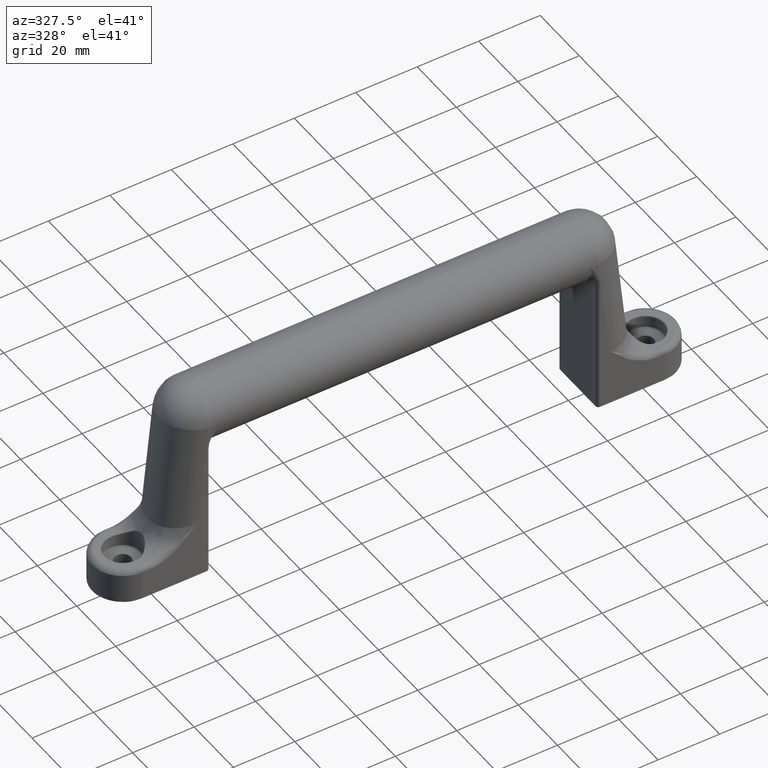
[diagram: clean part render]
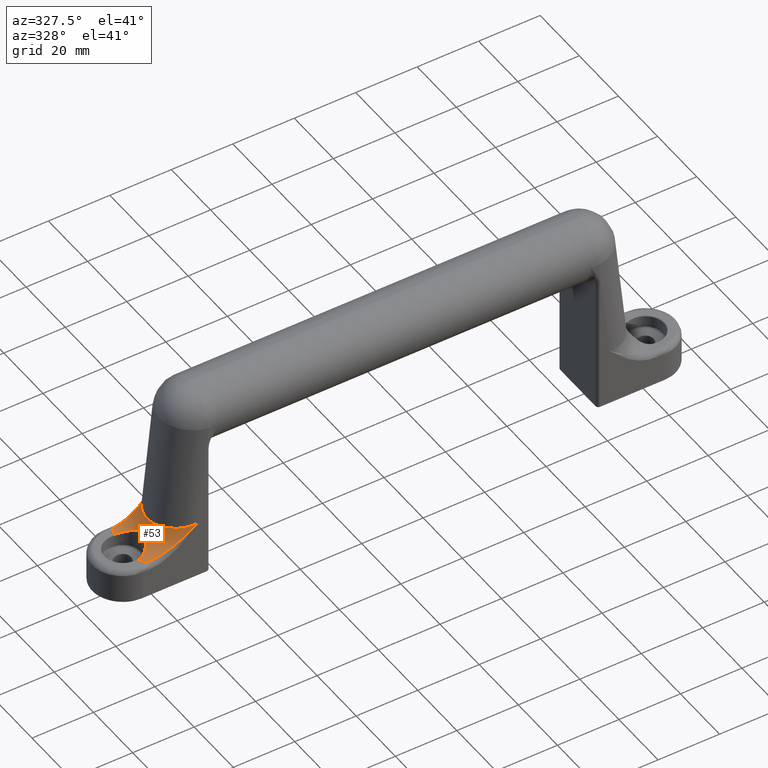
[diagram: same view with one face highlighted and labeled with its STEP entity id]
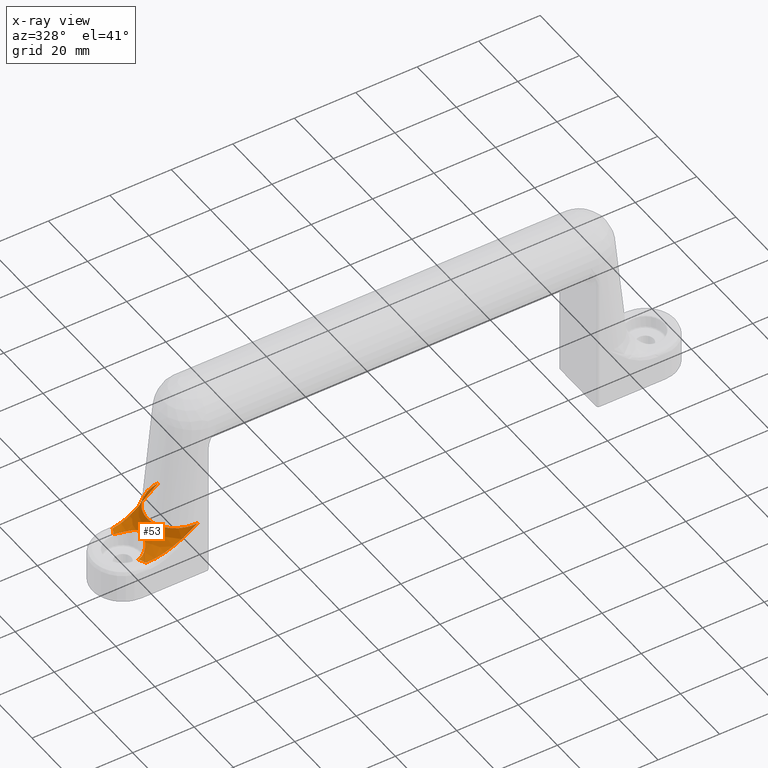
[diagram: x-ray of the same camera — body ghosted, the highlighted face saturated]
A machine part, auxiliary view. The second image highlights one B-rep face of the part: STEP entity #53.
The next image is the same camera in x-ray: the body ghosted, the highlighted face saturated — about 0% of this face is hidden behind the body in this view.
In plain terms, the highlighted face is a freeform B-spline surface patch.
Its self-contained STEP definition (entity closure, byte-faithful):
#53=ADVANCED_FACE('',(#252),#251,.F.);
#251=( BOUNDED_SURFACE() B_SPLINE_SURFACE( 3,2,((#1412,#1413,#1414),(#1415,#1416,#1417),(#1418,#1419,#1420),(#1421,#1422,#1423),(#1424,#1425,#1426),(#1427,#1428,#1429),(#1430,#1431,#1432),(#1433,#1434,#1435),(#1436,#1437,#1438),(#1439,#1440,#1441),(#1442,#1443,#1444),(#1445,#1446,#1447),(#1448,#1449,#1450),(#1451,#1452,#1453),(#1454,#1455,#1456),(#1457,#1458,#1459),(#1460,#1461,#1462),(#1463,#1464,#1465),(#1466,#1467,#1468),(#1469,#1470,#1471),(#1472,#1473,#1474),(#1475,#1476,#1477),(#1478,#1479,#1480),(#1481,#1482,#1483),(#1484,#1485,#1486),(#1487,#1488,#1489),(#1490,#1491,#1492),(#1493,#1494,#1495),(#1496,#1497,#1498),(#1499,#1500,#1501),(#1502,#1503,#1504),(#1505,#1506,#1507),(#1508,#1509,#1510),(#1511,#1512,#1513)), .UNSPECIFIED.,.F.,.F.,.F.) B_SPLINE_SURFACE_WITH_KNOTS((4,2,2,2,2,2,2,2,2,2,2,2,2,2,2,2,4),(3,3),(1.55194677087E+00,1.75065250621E+00,1.94935824155E+00,2.14806397689E+00,2.34676971223E+00,2.54547544757E+00,2.74418118291E+00,2.94288691825E+00,3.14159265359E+00,3.34029838893E+00,3.53900412427E+00,3.73770985961E+00,3.93641559495E+00,4.13512133029E+00,4.33382706563E+00,4.53253280097E+00,4.73123853631E+00),(0.00000000000E+00,1.00000000000E+00), .UNSPECIFIED. ) GEOMETRIC_REPRESENTATION_ITEM() RATIONAL_B_SPLINE_SURFACE(((1.00000000000E+00,7.06409867415E-01,1.00000000000E+00),(1.00000000000E+00,7.08859745657E-01,1.00000000000E+00),(1.00000000000E+00,7.11301094414E-01,1.00000000000E+00),(1.00000000000E+00,7.16073345273E-01,1.00000000000E+00),(1.00000000000E+00,7.18404066029E-01,1.00000000000E+00),(1.00000000000E+00,7.22867670299E-01,1.00000000000E+00),(1.00000000000E+00,7.25000475143E-01,1.00000000000E+00),(1.00000000000E+00,7.28990574144E-01,1.00000000000E+00),(1.00000000000E+00,7.30847807672E-01,1.00000000000E+00),(1.00000000000E+00,7.34220723999E-01,1.00000000000E+00),(1.00000000000E+00,7.35736361926E-01,1.00000000000E+00),(1.00000000000E+00,7.38373253955E-01,1.00000000000E+00),(1.00000000000E+00,7.39494476676E-01,1.00000000000E+00),(1.00000000000E+00,7.41304047415E-01,1.00000000000E+00),(1.00000000000E+00,7.41992375638E-01,1.00000000000E+00),(1.00000000000E+00,7.42912769445E-01,1.00000000000E+00),(1.00000000000E+00,7.43144825477E-01,1.00000000000E+00),(1.00000000000E+00,7.43144825477E-01,1.00000000000E+00),(1.00000000000E+00,7.42912769445E-01,1.00000000000E+00),(1.00000000000E+00,7.41992375638E-01,1.00000000000E+00),(1.00000000000E+00,7.41304047415E-01,1.00000000000E+00),(1.00000000000E+00,7.39494476676E-01,1.00000000000E+00),(1.00000000000E+00,7.38373253955E-01,1.00000000000E+00),(1.00000000000E+00,7.35736361926E-01,1.00000000000E+00),(1.00000000000E+00,7.34220723999E-01,1.00000000000E+00),(1.00000000000E+00,7.30847807673E-01,1.00000000000E+00),(1.00000000000E+00,7.28990574144E-01,1.00000000000E+00),(1.00000000000E+00,7.25000475143E-01,1.00000000000E+00),(1.00000000000E+00,7.22867670299E-01,1.00000000000E+00),(1.00000000000E+00,7.18404066029E-01,1.00000000000E+00),(1.00000000000E+00,7.16073345273E-01,1.00000000000E+00),(1.00000000000E+00,7.11301094414E-01,1.00000000000E+00),(1.00000000000E+00,7.08859745657E-01,1.00000000000E+00),(1.00000000000E+00,7.06409867415E-01,1.00000000000E+00))) REPRESENTATION_ITEM('') SURFACE() );
#252=FACE_OUTER_BOUND('',#1514,.T.);
#1412=CARTESIAN_POINT('',(-6.67723087112E+01,9.99822352381E+00,-3.29842384125E+01));
#1413=CARTESIAN_POINT('',(-6.67726047483E+01,9.98243362708E+00,-4.10000000000E+01));
#1414=CARTESIAN_POINT('',(-6.66223472233E+01,1.79968023429E+01,-4.10000000000E+01));
#1415=CARTESIAN_POINT('',(-6.74440196619E+01,1.00107079816E+01,-3.30396169745E+01));
#1416=CARTESIAN_POINT('',(-6.74398800418E+01,1.00502467512E+01,-4.10000000000E+01));
#1417=CARTESIAN_POINT('',(-6.78209500612E+01,1.80192743681E+01,-4.10000000000E+01));
#1418=CARTESIAN_POINT('',(-6.81169595259E+01,9.95718126214E+00,-3.30950968531E+01));
#1419=CARTESIAN_POINT('',(-6.81219445436E+01,1.00519627420E+01,-4.10000000000E+01));
#1420=CARTESIAN_POINT('',(-6.90217456449E+01,1.79229262718E+01,-4.10000000000E+01));
#1421=CARTESIAN_POINT('',(-6.94389304919E+01,9.72020735287E+00,-3.32040854754E+01));
#1422=CARTESIAN_POINT('',(-6.94816494137E+01,9.91483757496E+00,-4.10000000000E+01));
#1423=CARTESIAN_POINT('',(-7.13806740851E+01,1.74963732352E+01,-4.10000000000E+01));
#1424=CARTESIAN_POINT('',(-7.00879193731E+01,9.53676616091E+00,-3.32575907383E+01));
#1425=CARTESIAN_POINT('',(-7.01594915701E+01,9.77685811437E+00,-4.10000000000E+01));
#1426=CARTESIAN_POINT('',(-7.25387315378E+01,1.71661790896E+01,-4.10000000000E+01));
#1427=CARTESIAN_POINT('',(-7.13364301376E+01,9.04717564640E+00,-3.33605230052E+01));
#1428=CARTESIAN_POINT('',(-7.14795131953E+01,9.36135695476E+00,-4.10000000000E+01));
#1429=CARTESIAN_POINT('',(-7.47665774029E+01,1.62849161635E+01,-4.10000000000E+01));
#1430=CARTESIAN_POINT('',(-7.19359196434E+01,8.74103902028E+00,-3.34099473398E+01));
#1431=CARTESIAN_POINT('',(-7.21221883101E+01,9.08455199745E+00,-4.10000000000E+01));
#1432=CARTESIAN_POINT('',(-7.58363080410E+01,1.57338702365E+01,-4.10000000000E+01));
#1433=CARTESIAN_POINT('',(-7.30618360330E+01,8.01809935571E+00,-3.35027724315E+01));
#1434=CARTESIAN_POINT('',(-7.33408650682E+01,8.40001014552E+00,-4.10000000000E+01));
#1435=CARTESIAN_POINT('',(-7.78453961839E+01,1.44325788403E+01,-4.10000000000E+01));
#1436=CARTESIAN_POINT('',(-7.35882337187E+01,7.60131506505E+00,-3.35461707814E+01));
#1437=CARTESIAN_POINT('',(-7.39175994287E+01,7.99272981861E+00,-4.10000000000E+01));
#1438=CARTESIAN_POINT('',(-7.87847015874E+01,1.36823671171E+01,-4.10000000000E+01));
#1439=CARTESIAN_POINT('',(-7.45472461669E+01,6.67347698048E+00,-3.36252356385E+01));
#1440=CARTESIAN_POINT('',(-7.49757515752E+01,7.06324525239E+00,-4.10000000000E+01));
#1441=CARTESIAN_POINT('',(-8.04959659016E+01,1.20122585649E+01,-4.10000000000E+01));
#1442=CARTESIAN_POINT('',(-7.49798360595E+01,6.16244724794E+00,-3.36609000954E+01));
#1443=CARTESIAN_POINT('',(-7.54580102984E+01,6.54116522718E+00,-4.10000000000E+01));
#1444=CARTESIAN_POINT('',(-8.12678804346E+01,1.10924050463E+01,-4.10000000000E+01));
#1445=CARTESIAN_POINT('',(-7.57342033747E+01,5.06622509194E+00,-3.37230931817E+01));
#1446=CARTESIAN_POINT('',(-7.63028483329E+01,5.40469939316E+00,-4.10000000000E+01));
#1447=CARTESIAN_POINT('',(-8.26139754397E+01,9.11920516550E+00,-4.10000000000E+01));
#1448=CARTESIAN_POINT('',(-7.60559612344E+01,4.48106109651E+00,-3.37496201984E+01));
#1449=CARTESIAN_POINT('',(-7.66662303680E+01,4.79009166623E+00,-4.10000000000E+01));
#1450=CARTESIAN_POINT('',(-8.31881210039E+01,8.06590997371E+00,-4.10000000000E+01));
#1451=CARTESIAN_POINT('',(-7.65759958757E+01,3.25959584223E+00,-3.37924939532E+01));
#1452=CARTESIAN_POINT('',(-7.72548327691E+01,3.49652633541E+00,-4.10000000000E+01));
#1453=CARTESIAN_POINT('',(-8.41160721745E+01,5.86727251602E+00,-4.10000000000E+01));
#1454=CARTESIAN_POINT('',(-7.67742591714E+01,2.62332625932E+00,-3.38088395796E+01));
#1455=CARTESIAN_POINT('',(-7.74806791649E+01,2.81704674560E+00,-4.10000000000E+01));
#1456=CARTESIAN_POINT('',(-8.44698537165E+01,4.72198726677E+00,-4.10000000000E+01));
#1457=CARTESIAN_POINT('',(-7.70394955786E+01,1.32468772498E+00,-3.38307067396E+01));
#1458=CARTESIAN_POINT('',(-7.77827940112E+01,1.42539528551E+00,-4.10000000000E+01));
#1459=CARTESIAN_POINT('',(-8.49431422535E+01,2.38443790497E+00,-4.10000000000E+01));
#1460=CARTESIAN_POINT('',(-7.71064618119E+01,6.62352450791E-01,-3.38362277061E+01));
#1461=CARTESIAN_POINT('',(-7.78594046205E+01,7.12498507523E-01,-4.10000000000E+01));
#1462=CARTESIAN_POINT('',(-8.50626369749E+01,1.19223441142E+00,-4.10000000000E+01));
#1463=CARTESIAN_POINT('',(-7.71064618119E+01,-6.62352450791E-01,-3.38362277061E+01));
#1464=CARTESIAN_POINT('',(-7.78594046205E+01,-7.12498507523E-01,-4.10000000000E+01));
#1465=CARTESIAN_POINT('',(-8.50626369749E+01,-1.19223441142E+00,-4.10000000000E+01));
#1466=CARTESIAN_POINT('',(-7.70394955786E+01,-1.32468772498E+00,-3.38307067396E+01));
#1467=CARTESIAN_POINT('',(-7.77827940112E+01,-1.42539528551E+00,-4.10000000000E+01));
#1468=CARTESIAN_POINT('',(-8.49431422535E+01,-2.38443790497E+00,-4.10000000000E+01));
#1469=CARTESIAN_POINT('',(-7.67742591714E+01,-2.62332625932E+00,-3.38088395796E+01));
#1470=CARTESIAN_POINT('',(-7.74806791649E+01,-2.81704674559E+00,-4.10000000000E+01));
#1471=CARTESIAN_POINT('',(-8.44698537165E+01,-4.72198726677E+00,-4.10000000000E+01));
#1472=CARTESIAN_POINT('',(-7.65759958757E+01,-3.25959584223E+00,-3.37924939532E+01));
#1473=CARTESIAN_POINT('',(-7.72548327691E+01,-3.49652633541E+00,-4.10000000000E+01));
#1474=CARTESIAN_POINT('',(-8.41160721745E+01,-5.86727251602E+00,-4.10000000000E+01));
#1475=CARTESIAN_POINT('',(-7.60559612344E+01,-4.48106109650E+00,-3.37496201984E+01));
#1476=CARTESIAN_POINT('',(-7.66662303681E+01,-4.79009166623E+00,-4.10000000000E+01));
#1477=CARTESIAN_POINT('',(-8.31881210039E+01,-8.06590997371E+00,-4.10000000000E+01));
#1478=CARTESIAN_POINT('',(-7.57342033747E+01,-5.06622509195E+00,-3.37230931817E+01));
#1479=CARTESIAN_POINT('',(-7.63028483329E+01,-5.40469939316E+00,-4.10000000000E+01));
#1480=CARTESIAN_POINT('',(-8.26139754397E+01,-9.11920516550E+00,-4.10000000000E+01));
#1481=CARTESIAN_POINT('',(-7.49798360595E+01,-6.16244724794E+00,-3.36609000954E+01));
#1482=CARTESIAN_POINT('',(-7.54580102984E+01,-6.54116522718E+00,-4.10000000000E+01));
#1483=CARTESIAN_POINT('',(-8.12678804346E+01,-1.10924050463E+01,-4.10000000000E+01));
#1484=CARTESIAN_POINT('',(-7.45472461669E+01,-6.67347698048E+00,-3.36252356385E+01));
#1485=CARTESIAN_POINT('',(-7.49757515751E+01,-7.06324525238E+00,-4.10000000000E+01));
#1486=CARTESIAN_POINT('',(-8.04959659016E+01,-1.20122585649E+01,-4.10000000000E+01));
#1487=CARTESIAN_POINT('',(-7.35882337187E+01,-7.60131506505E+00,-3.35461707814E+01));
#1488=CARTESIAN_POINT('',(-7.39175994288E+01,-7.99272981861E+00,-4.10000000000E+01));
#1489=CARTESIAN_POINT('',(-7.87847015874E+01,-1.36823671171E+01,-4.10000000000E+01));
#1490=CARTESIAN_POINT('',(-7.30618360330E+01,-8.01809935571E+00,-3.35027724315E+01));
#1491=CARTESIAN_POINT('',(-7.33408650682E+01,-8.40001014552E+00,-4.10000000000E+01));
#1492=CARTESIAN_POINT('',(-7.78453961839E+01,-1.44325788403E+01,-4.10000000000E+01));
#1493=CARTESIAN_POINT('',(-7.19359196434E+01,-8.74103902028E+00,-3.34099473398E+01));
#1494=CARTESIAN_POINT('',(-7.21221883101E+01,-9.08455199745E+00,-4.10000000000E+01));
#1495=CARTESIAN_POINT('',(-7.58363080410E+01,-1.57338702365E+01,-4.10000000000E+01));
#1496=CARTESIAN_POINT('',(-7.13364301375E+01,-9.04717564640E+00,-3.33605230052E+01));
#1497=CARTESIAN_POINT('',(-7.14795131953E+01,-9.36135695476E+00,-4.10000000000E+01));
#1498=CARTESIAN_POINT('',(-7.47665774029E+01,-1.62849161635E+01,-4.10000000000E+01));
#1499=CARTESIAN_POINT('',(-7.00879193731E+01,-9.53676616090E+00,-3.32575907384E+01));
#1500=CARTESIAN_POINT('',(-7.01594915702E+01,-9.77685811437E+00,-4.10000000000E+01));
#1501=CARTESIAN_POINT('',(-7.25387315378E+01,-1.71661790896E+01,-4.10000000000E+01));
#1502=CARTESIAN_POINT('',(-6.94389304919E+01,-9.72020735287E+00,-3.32040854755E+01));
#1503=CARTESIAN_POINT('',(-6.94816494137E+01,-9.91483757497E+00,-4.10000000000E+01));
#1504=CARTESIAN_POINT('',(-7.13806740851E+01,-1.74963732352E+01,-4.10000000000E+01));
#1505=CARTESIAN_POINT('',(-6.81169595260E+01,-9.95718126213E+00,-3.30950968531E+01));
#1506=CARTESIAN_POINT('',(-6.81219445436E+01,-1.00519627420E+01,-4.10000000000E+01));
#1507=CARTESIAN_POINT('',(-6.90217456449E+01,-1.79229262718E+01,-4.10000000000E+01));
#1508=CARTESIAN_POINT('',(-6.74440196619E+01,-1.00107079816E+01,-3.30396169745E+01));
#1509=CARTESIAN_POINT('',(-6.74398800418E+01,-1.00502467512E+01,-4.10000000000E+01));
#1510=CARTESIAN_POINT('',(-6.78209500612E+01,-1.80192743681E+01,-4.10000000000E+01));
#1511=CARTESIAN_POINT('',(-6.67723087112E+01,-9.99822352381E+00,-3.29842384125E+01));
#1512=CARTESIAN_POINT('',(-6.67726047483E+01,-9.98243362708E+00,-4.10000000000E+01));
#1513=CARTESIAN_POINT('',(-6.66223472233E+01,-1.79968023429E+01,-4.10000000000E+01));
#1514=EDGE_LOOP('',(#2677,#2678,#2679,#2680,#2681,#2682));
#2677=ORIENTED_EDGE('',*,*,#3027,.F.);
#2678=ORIENTED_EDGE('',*,*,#3023,.T.);
#2679=ORIENTED_EDGE('',*,*,#3028,.F.);
#2680=ORIENTED_EDGE('',*,*,#3029,.T.);
#2681=ORIENTED_EDGE('',*,*,#3030,.F.);
#2682=ORIENTED_EDGE('',*,*,#3031,.T.);
#3023=EDGE_CURVE('',#3428,#3421,#3429,.T.);
#3027=EDGE_CURVE('',#3428,#3455,#3456,.T.);
#3028=EDGE_CURVE('',#3462,#3421,#3463,.T.);
#3029=EDGE_CURVE('',#3462,#3469,#3470,.T.);
#3030=EDGE_CURVE('',#3476,#3469,#3477,.T.);
#3031=EDGE_CURVE('',#3476,#3455,#3483,.T.);
#3421=VERTEX_POINT('',#4619);
#3428=VERTEX_POINT('',#4624);
#3429=(BOUNDED_CURVE() B_SPLINE_CURVE(3,(#4625,#4626,#4627,#4628,#4629,#4630,#4631,#4632,#4633,#4634,#4635,#4636,#4637,#4638,#4639,#4640,#4641,#4642,#4643,#4644,#4645,#4646,#4647,#4648,#4649,#4650,#4651,#4652,#4653,#4654,#4655,#4656,#4657,#4658,#4659,#4660,#4661,#4662,#4663,#4664),.UNSPECIFIED.,.F.,.F.) B_SPLINE_CURVE_WITH_KNOTS((4,2,2,2,2,2,2,2,2,2,2,2,2,2,2,2,2,2,2,4),(1.45396321842E-17,1.15173173863E-03,2.30346347727E-03,3.45519521590E-03,4.60692695454E-03,5.75865869317E-03,6.91039043180E-03,7.48625630112E-03,8.06212217044E-03,8.63798803976E-03,9.21385390907E-03,9.78971977839E-03,1.03655856477E-02,1.15173173863E-02,1.26690491250E-02,1.38207808636E-02,1.49725126022E-02,1.61242443409E-02,1.72759760795E-02,1.84277078181E-02),.UNSPECIFIED.) CURVE() GEOMETRIC_REPRESENTATION_ITEM() RATIONAL_B_SPLINE_CURVE((1.00000000000E+00,1.00000000000E+00,1.00000000000E+00,1.00000000000E+00,1.00000000000E+00,1.00000000000E+00,1.00000000000E+00,1.00000000000E+00,1.00000000000E+00,1.00000000000E+00,1.00000000000E+00,1.00000000000E+00,1.00000000000E+00,1.00000000000E+00,1.00000000000E+00,1.00000000000E+00,1.00000000000E+00,1.00000000000E+00,1.00000000000E+00,1.00000000000E+00,1.00000000000E+00,1.00000000000E+00,1.00000000000E+00,1.00000000000E+00,1.00000000000E+00,1.00000000000E+00,1.00000000000E+00,1.00000000000E+00,1.00000000000E+00,1.00000000000E+00,1.00000000000E+00,1.00000000000E+00,1.00000000000E+00,1.00000000000E+00,1.00000000000E+00,1.00000000000E+00,1.00000000000E+00,1.00000000000E+00,1.00000000000E+00,1.00000000000E+00)) REPRESENTATION_ITEM('') );
#3455=VERTEX_POINT('',#4713);
#3456=(BOUNDED_CURVE() B_SPLINE_CURVE(2,(#4714,#4715,#4716),.UNSPECIFIED.,.F.,.F.) B_SPLINE_CURVE_WITH_KNOTS((3,3),(-2.78923576282E+00,-2.64978255902E+00),.UNSPECIFIED.) CURVE() GEOMETRIC_REPRESENTATION_ITEM() RATIONAL_B_SPLINE_CURVE((1.00000000000E+00,9.97570085213E-01,1.00000000000E+00)) REPRESENTATION_ITEM('') );
#3462=VERTEX_POINT('',#4717);
#3463=(BOUNDED_CURVE() B_SPLINE_CURVE(2,(#4718,#4719,#4720),.UNSPECIFIED.,.F.,.F.) B_SPLINE_CURVE_WITH_KNOTS((3,3),(2.64978255902E+00,2.78923576282E+00),.UNSPECIFIED.) CURVE() GEOMETRIC_REPRESENTATION_ITEM() RATIONAL_B_SPLINE_CURVE((1.00000000000E+00,9.97570085213E-01,1.00000000000E+00)) REPRESENTATION_ITEM('') );
#3469=VERTEX_POINT('',#4721);
#3470=(BOUNDED_CURVE() B_SPLINE_CURVE(3,(#4722,#4723,#4724,#4725,#4726,#4727,#4728,#4729,#4730,#4731,#4732,#4733),.UNSPECIFIED.,.F.,.F.) B_SPLINE_CURVE_WITH_KNOTS((4,2,2,2,2,4),(0.00000000000E+00,2.28150081984E-03,4.56300163968E-03,9.12600327935E-03,1.36890049190E-02,1.82520065587E-02),.UNSPECIFIED.) CURVE() GEOMETRIC_REPRESENTATION_ITEM() RATIONAL_B_SPLINE_CURVE((1.00000000000E+00,1.00000000000E+00,1.00000000000E+00,1.00000000000E+00,1.00000000000E+00,1.00000000000E+00,1.00000000000E+00,1.00000000000E+00,1.00000000000E+00,1.00000000000E+00,1.00000000000E+00,1.00000000000E+00)) REPRESENTATION_ITEM('') );
#3476=VERTEX_POINT('',#4734);
#3477=(BOUNDED_CURVE() B_SPLINE_CURVE(2,(#4735,#4736,#4737,#4738,#4739),.UNSPECIFIED.,.F.,.F.) B_SPLINE_CURVE_WITH_KNOTS((3,2,3),(-4.71238898038E+00,-3.14159265359E+00,-1.57079632679E+00),.UNSPECIFIED.) CURVE() GEOMETRIC_REPRESENTATION_ITEM() RATIONAL_B_SPLINE_CURVE((1.00000000000E+00,7.07106781187E-01,1.00000000000E+00,7.07106781187E-01,1.00000000000E+00)) REPRESENTATION_ITEM('') );
#3483=(BOUNDED_CURVE() B_SPLINE_CURVE(3,(#4740,#4741,#4742,#4743,#4744,#4745,#4746,#4747,#4748,#4749,#4750,#4751),.UNSPECIFIED.,.F.,.F.) B_SPLINE_CURVE_WITH_KNOTS((4,2,2,2,2,4),(-1.82520065587E-02,-1.36890049190E-02,-9.12600327935E-03,-4.56300163968E-03,-2.28150081984E-03,-0.00000000000E+00),.UNSPECIFIED.) CURVE() GEOMETRIC_REPRESENTATION_ITEM() RATIONAL_B_SPLINE_CURVE((1.00000000000E+00,1.00000000000E+00,1.00000000000E+00,1.00000000000E+00,1.00000000000E+00,1.00000000000E+00,1.00000000000E+00,1.00000000000E+00,1.00000000000E+00,1.00000000000E+00,1.00000000000E+00,1.00000000000E+00)) REPRESENTATION_ITEM('') );
#4619=CARTESIAN_POINT('',(-8.39506602230E+01,-6.21199533408E+00,-4.10000000000E+01));
#4624=CARTESIAN_POINT('',(-8.39506602230E+01,6.21199533408E+00,-4.10000000000E+01));
#4625=CARTESIAN_POINT('',(-8.39506602230E+01,6.21199533408E+00,-4.10000000000E+01));
#4626=CARTESIAN_POINT('',(-8.35653887823E+01,6.14961975110E+00,-4.10000000000E+01));
#4627=CARTESIAN_POINT('',(-8.31947526335E+01,6.05076832101E+00,-4.09726663375E+01));
#4628=CARTESIAN_POINT('',(-8.24813754013E+01,5.78474172413E+00,-4.08625402913E+01));
#4629=CARTESIAN_POINT('',(-8.21359315450E+01,5.61496084242E+00,-4.07780588572E+01));
#4630=CARTESIAN_POINT('',(-8.15057669343E+01,5.22713421342E+00,-4.05631691347E+01));
#4631=CARTESIAN_POINT('',(-8.12162838400E+01,5.00780581208E+00,-4.04323521467E+01));
#4632=CARTESIAN_POINT('',(-8.06852389943E+01,4.52403418946E+00,-4.01322591942E+01));
#4633=CARTESIAN_POINT('',(-8.04513880700E+01,4.26692491045E+00,-3.99675544616E+01));
#4634=CARTESIAN_POINT('',(-8.00345698935E+01,3.72406793508E+00,-3.96212470396E+01));
#4635=CARTESIAN_POINT('',(-7.98516921538E+01,3.43837832270E+00,-3.94394420253E+01));
#4636=CARTESIAN_POINT('',(-7.95310405698E+01,2.83298980235E+00,-3.90745766661E+01));
#4637=CARTESIAN_POINT('',(-7.93961754616E+01,2.51887852498E+00,-3.88947248694E+01));
#4638=CARTESIAN_POINT('',(-7.92291781033E+01,2.02396552890E+00,-3.86490340999E+01));
#4639=CARTESIAN_POINT('',(-7.91794100416E+01,1.85488247556E+00,-3.85711869778E+01));
#4640=CARTESIAN_POINT('',(-7.90919784271E+01,1.50593620087E+00,-3.84285100014E+01));
#4641=CARTESIAN_POINT('',(-7.90542066208E+01,1.32507898650E+00,-3.83634715056E+01));
#4642=CARTESIAN_POINT('',(-7.89932938485E+01,9.58179629818E-01,-3.82555253092E+01));
#4643=CARTESIAN_POINT('',(-7.89699080554E+01,7.71442277398E-01,-3.82122743242E+01));
#4644=CARTESIAN_POINT('',(-7.89381931999E+01,3.89988485735E-01,-3.81529644941E+01));
#4645=CARTESIAN_POINT('',(-7.89299954351E+01,1.93916711266E-01,-3.81372033774E+01));
#4646=CARTESIAN_POINT('',(-7.89299543070E+01,-1.92421546384E-01,-3.81371249825E+01));
#4647=CARTESIAN_POINT('',(-7.89378808476E+01,-3.84189896435E-01,-3.81523686138E+01));
#4648=CARTESIAN_POINT('',(-7.89692175372E+01,-7.65114755467E-01,-3.82109943702E+01));
#4649=CARTESIAN_POINT('',(-7.89928839950E+01,-9.55172522046E-01,-3.82547772573E+01));
#4650=CARTESIAN_POINT('',(-7.90838960318E+01,-1.50497178940E+00,-3.84161283154E+01));
#4651=CARTESIAN_POINT('',(-7.91710203697E+01,-1.85074170010E+00,-3.85632872789E+01));
#4652=CARTESIAN_POINT('',(-7.93953928342E+01,-2.51741427428E+00,-3.88937544685E+01));
#4653=CARTESIAN_POINT('',(-7.95302226436E+01,-2.83067973257E+00,-3.90733138999E+01));
#4654=CARTESIAN_POINT('',(-7.98464015887E+01,-3.42914095237E+00,-3.94337476658E+01));
#4655=CARTESIAN_POINT('',(-8.00279024159E+01,-3.71450502939E+00,-3.96151639089E+01));
#4656=CARTESIAN_POINT('',(-8.04468797423E+01,-4.26190951161E+00,-3.99643380347E+01));
#4657=CARTESIAN_POINT('',(-8.06844421035E+01,-4.52280177494E+00,-4.01314378664E+01));
#4658=CARTESIAN_POINT('',(-8.12080181334E+01,-5.00077368768E+00,-4.04280458446E+01));
#4659=CARTESIAN_POINT('',(-8.14964714611E+01,-5.22086344957E+00,-4.05595736340E+01));
#4660=CARTESIAN_POINT('',(-8.21329474961E+01,-5.61366382830E+00,-4.07774588395E+01));
#4661=CARTESIAN_POINT('',(-8.24703013711E+01,-5.77983554968E+00,-4.08602432264E+01));
#4662=CARTESIAN_POINT('',(-8.31852800766E+01,-6.04799044450E+00,-4.09717749305E+01));
#4663=CARTESIAN_POINT('',(-8.35653643309E+01,-6.14961579240E+00,-4.10000000000E+01));
#4664=CARTESIAN_POINT('',(-8.39506602230E+01,-6.21199533408E+00,-4.10000000000E+01));
#4713=CARTESIAN_POINT('',(-8.29175174382E+01,8.50000000000E+00,-4.10000000000E+01));
#4714=CARTESIAN_POINT('',(-8.39506602230E+01,6.21199533408E+00,-4.10000000000E+01));
#4715=CARTESIAN_POINT('',(-8.35144258433E+01,7.39187728565E+00,-4.10000000000E+01));
#4716=CARTESIAN_POINT('',(-8.29175174382E+01,8.50000000000E+00,-4.10000000000E+01));
#4717=CARTESIAN_POINT('',(-8.29175174382E+01,-8.50000000000E+00,-4.10000000000E+01));
#4718=CARTESIAN_POINT('',(-8.29175174382E+01,-8.50000000000E+00,-4.10000000000E+01));
#4719=CARTESIAN_POINT('',(-8.35144258433E+01,-7.39187728565E+00,-4.10000000000E+01));
#4720=CARTESIAN_POINT('',(-8.39506602230E+01,-6.21199533408E+00,-4.10000000000E+01));
#4721=CARTESIAN_POINT('',(-6.69634879427E+01,-1.00000000000E+01,-3.30000000000E+01));
#4722=CARTESIAN_POINT('',(-8.29175174382E+01,-8.50000000000E+00,-4.10000000000E+01));
#4723=CARTESIAN_POINT('',(-8.21508352334E+01,-8.55759093692E+00,-4.10000000000E+01));
#4724=CARTESIAN_POINT('',(-8.13961675857E+01,-8.62018936953E+00,-4.09220757557E+01));
#4725=CARTESIAN_POINT('',(-7.99064939170E+01,-8.75646733501E+00,-4.06404157084E+01));
#4726=CARTESIAN_POINT('',(-7.91667193316E+01,-8.83076974274E+00,-4.04341458286E+01));
#4727=CARTESIAN_POINT('',(-7.70266250855E+01,-9.06303335183E+00,-3.96792392925E+01));
#4728=CARTESIAN_POINT('',(-7.56907358370E+01,-9.23276313468E+00,-3.89975746695E+01));
#4729=CARTESIAN_POINT('',(-7.31059533896E+01,-9.55941655648E+00,-3.74569472613E+01));
#4730=CARTESIAN_POINT('',(-7.18562678187E+01,-9.71475101089E+00,-3.65970039920E+01));
#4731=CARTESIAN_POINT('',(-6.93946988124E+01,-9.93589134079E+00,-3.48266399945E+01));
#4732=CARTESIAN_POINT('',(-6.81799386397E+01,-1.00000000000E+01,-3.39130665028E+01));
#4733=CARTESIAN_POINT('',(-6.69634879427E+01,-1.00000000000E+01,-3.30000000000E+01));
#4734=CARTESIAN_POINT('',(-6.69634879427E+01,1.00000000000E+01,-3.30000000000E+01));
#4735=CARTESIAN_POINT('',(-6.69634879427E+01,1.00000000000E+01,-3.30000000000E+01));
#4736=CARTESIAN_POINT('',(-7.71064618119E+01,1.00000000000E+01,-3.38362277061E+01));
#4737=CARTESIAN_POINT('',(-7.71064618119E+01,1.45960717471E-14,-3.38362277061E+01));
#4738=CARTESIAN_POINT('',(-7.71064618119E+01,-1.00000000000E+01,-3.38362277061E+01));
#4739=CARTESIAN_POINT('',(-6.69634879427E+01,-1.00000000000E+01,-3.30000000000E+01));
#4740=CARTESIAN_POINT('',(-6.69634879427E+01,1.00000000000E+01,-3.30000000000E+01));
#4741=CARTESIAN_POINT('',(-6.81799386400E+01,1.00000000000E+01,-3.39130665025E+01));
#4742=CARTESIAN_POINT('',(-6.93946988124E+01,9.93589134079E+00,-3.48266399945E+01));
#4743=CARTESIAN_POINT('',(-7.18562678187E+01,9.71475101089E+00,-3.65970039920E+01));
#4744=CARTESIAN_POINT('',(-7.31059533896E+01,9.55941655648E+00,-3.74569472613E+01));
#4745=CARTESIAN_POINT('',(-7.56907358370E+01,9.23276313468E+00,-3.89975746695E+01));
#4746=CARTESIAN_POINT('',(-7.70266250855E+01,9.06303335183E+00,-3.96792392925E+01));
#4747=CARTESIAN_POINT('',(-7.91667193316E+01,8.83076974274E+00,-4.04341458286E+01));
#4748=CARTESIAN_POINT('',(-7.99064939170E+01,8.75646733501E+00,-4.06404157084E+01));
#4749=CARTESIAN_POINT('',(-8.13961675857E+01,8.62018936953E+00,-4.09220757557E+01));
#4750=CARTESIAN_POINT('',(-8.21508352334E+01,8.55759093692E+00,-4.10000000000E+01));
#4751=CARTESIAN_POINT('',(-8.29175174382E+01,8.50000000000E+00,-4.10000000000E+01));